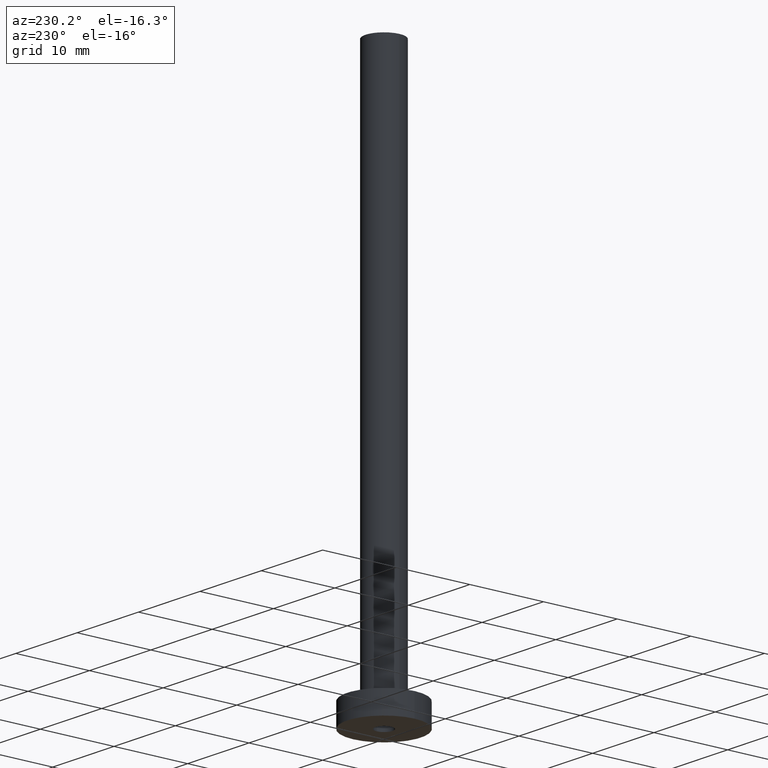
[diagram: clean part render]
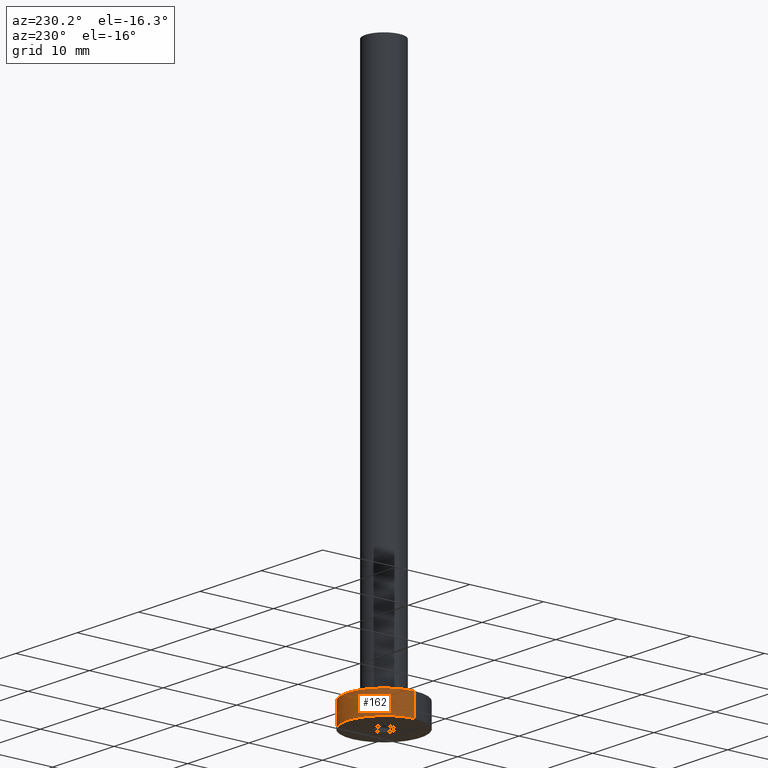
[diagram: same view with one face highlighted and labeled with its STEP entity id]
A machine part, auxiliary view. The second image highlights one B-rep face of the part: STEP entity #162.
In plain terms, the highlighted cylindrical surface (partial cylindrical patch) has radius 5 mm, axis along (-0, -0, -1).
Its self-contained STEP definition (entity closure, byte-faithful):
#12 = ORIENTED_EDGE ( 'NONE', *, *, #331, .F. ) ;
#20 = VERTEX_POINT ( 'NONE', #178 ) ;
#45 = DIRECTION ( 'NONE',  ( 0.000000000000000000, 0.000000000000000000, 1.000000000000000000 ) ) ;
#54 = ORIENTED_EDGE ( 'NONE', *, *, #171, .F. ) ;
#57 = LINE ( 'NONE', #200, #189 ) ;
#58 = LINE ( 'NONE', #416, #143 ) ;
#77 = CARTESIAN_POINT ( 'NONE',  ( 0.000000000000000000, 0.000000000000000000, 3.000000000000000000 ) ) ;
#123 = CYLINDRICAL_SURFACE ( 'NONE', #386, 5.000000000000000000 ) ;
#125 = ORIENTED_EDGE ( 'NONE', *, *, #255, .T. ) ;
#143 = VECTOR ( 'NONE', #238, 1000.000000000000000 ) ;
#148 = ORIENTED_EDGE ( 'NONE', *, *, #204, .T. ) ;
#162 = ADVANCED_FACE ( 'NONE', ( #242 ), #123, .T. ) ;
#171 = EDGE_CURVE ( 'NONE', #301, #20, #57, .T. ) ;
#178 = CARTESIAN_POINT ( 'NONE',  ( -5.000000000000000000, 0.000000000000000000, 0.000000000000000000 ) ) ;
#189 = VECTOR ( 'NONE', #339, 1000.000000000000000 ) ;
#200 = CARTESIAN_POINT ( 'NONE',  ( -5.000000000000000000, 0.000000000000000000, 3.000000000000000000 ) ) ;
#201 = VERTEX_POINT ( 'NONE', #267 ) ;
#204 = EDGE_CURVE ( 'NONE', #201, #338, #58, .T. ) ;
#233 = DIRECTION ( 'NONE',  ( 1.000000000000000000, 0.000000000000000000, 0.000000000000000000 ) ) ;
#238 = DIRECTION ( 'NONE',  ( -0.000000000000000000, -0.000000000000000000, -1.000000000000000000 ) ) ;
#242 = FACE_OUTER_BOUND ( 'NONE', #333, .T. ) ;
#255 = EDGE_CURVE ( 'NONE', #338, #20, #284, .T. ) ;
#267 = CARTESIAN_POINT ( 'NONE',  ( 5.000000000000000000, 6.123233995736766282E-16, 3.000000000000000000 ) ) ;
#270 = DIRECTION ( 'NONE',  ( -0.000000000000000000, -0.000000000000000000, -1.000000000000000000 ) ) ;
#282 = CARTESIAN_POINT ( 'NONE',  ( -5.000000000000000000, 0.000000000000000000, 3.000000000000000000 ) ) ;
#284 = CIRCLE ( 'NONE', #327, 5.000000000000000000 ) ;
#293 = DIRECTION ( 'NONE',  ( 1.000000000000000000, 0.000000000000000000, 0.000000000000000000 ) ) ;
#301 = VERTEX_POINT ( 'NONE', #282 ) ;
#327 = AXIS2_PLACEMENT_3D ( 'NONE', #401, #45, #233 ) ;
#331 = EDGE_CURVE ( 'NONE', #201, #301, #408, .T. ) ;
#333 = EDGE_LOOP ( 'NONE', ( #12, #148, #125, #54 ) ) ;
#338 = VERTEX_POINT ( 'NONE', #434 ) ;
#339 = DIRECTION ( 'NONE',  ( -0.000000000000000000, -0.000000000000000000, -1.000000000000000000 ) ) ;
#372 = AXIS2_PLACEMENT_3D ( 'NONE', #77, #421, #293 ) ;
#378 = CARTESIAN_POINT ( 'NONE',  ( 0.000000000000000000, 0.000000000000000000, 3.000000000000000000 ) ) ;
#386 = AXIS2_PLACEMENT_3D ( 'NONE', #378, #270, #406 ) ;
#401 = CARTESIAN_POINT ( 'NONE',  ( 0.000000000000000000, 0.000000000000000000, 0.000000000000000000 ) ) ;
#406 = DIRECTION ( 'NONE',  ( -1.000000000000000000, 0.000000000000000000, 0.000000000000000000 ) ) ;
#408 = CIRCLE ( 'NONE', #372, 5.000000000000000000 ) ;
#416 = CARTESIAN_POINT ( 'NONE',  ( 5.000000000000000000, 6.123233995736766282E-16, 3.000000000000000000 ) ) ;
#421 = DIRECTION ( 'NONE',  ( 0.000000000000000000, 0.000000000000000000, 1.000000000000000000 ) ) ;
#434 = CARTESIAN_POINT ( 'NONE',  ( 5.000000000000000000, 6.123233995736766282E-16, 0.000000000000000000 ) ) ;